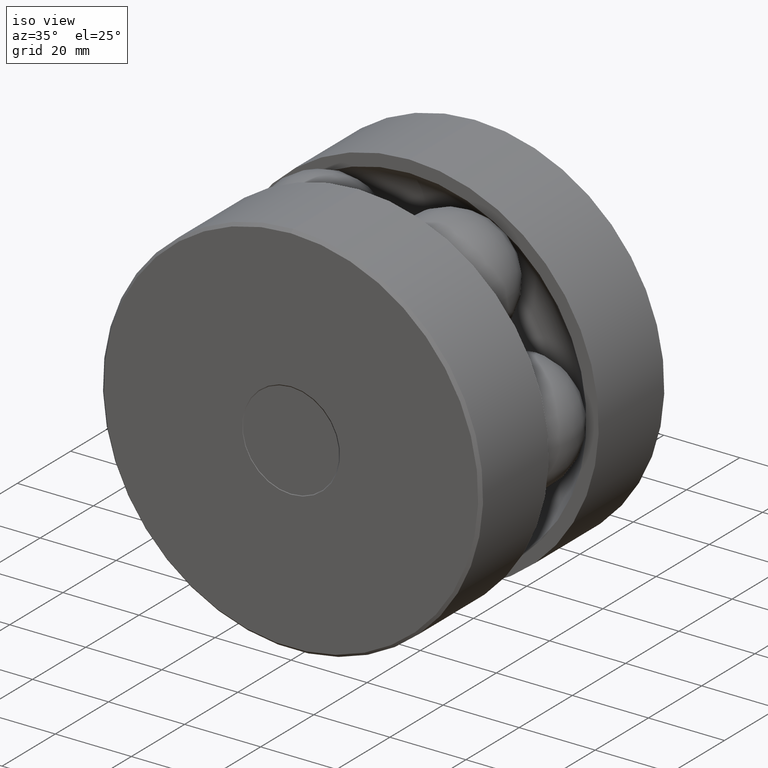
[diagram: clean part render]
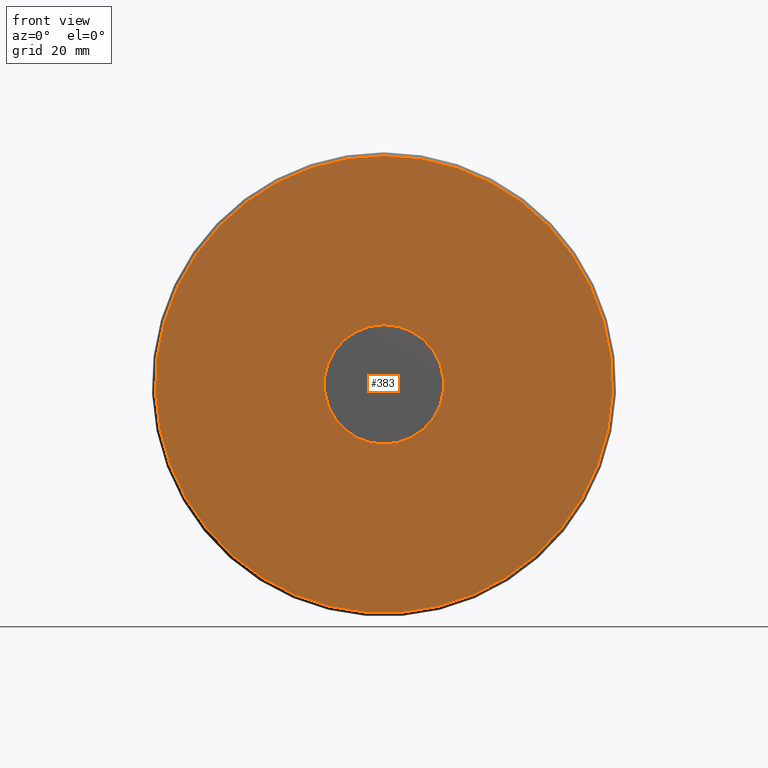
[diagram: tour spotlight — one face highlighted and labeled with its STEP entity id]
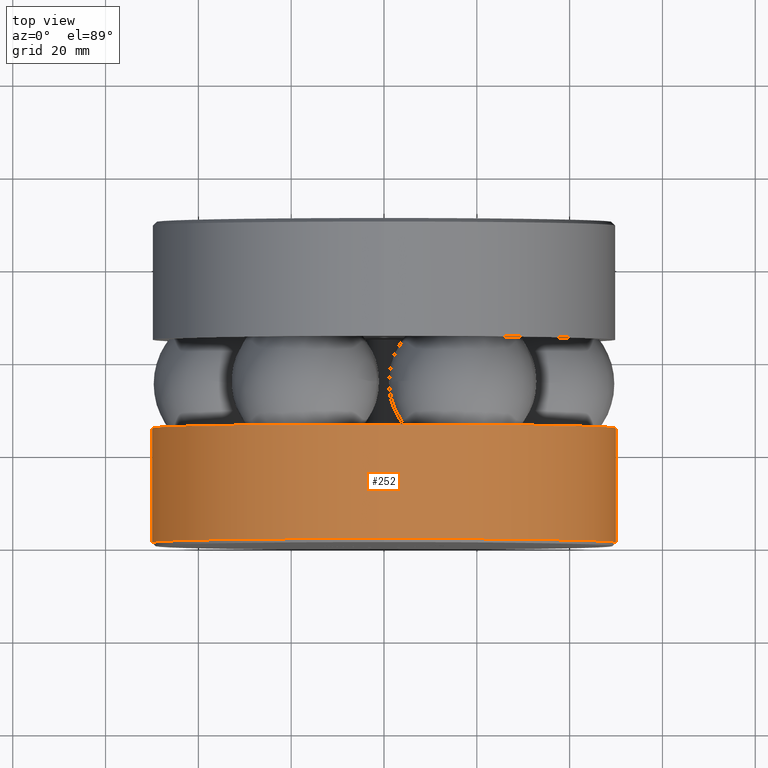
[diagram: tour spotlight — one face highlighted and labeled with its STEP entity id]
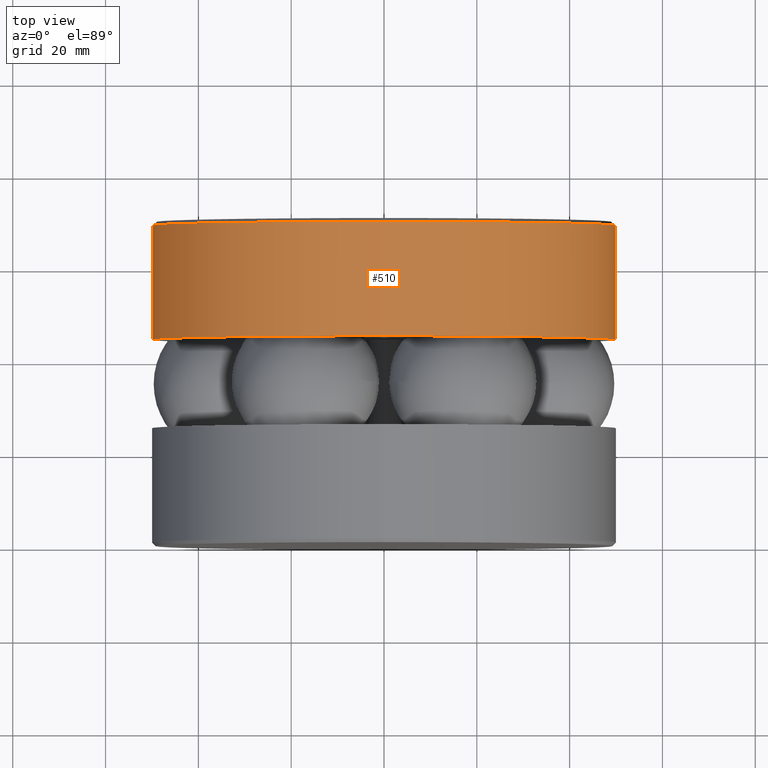
[diagram: tour spotlight — one face highlighted and labeled with its STEP entity id]
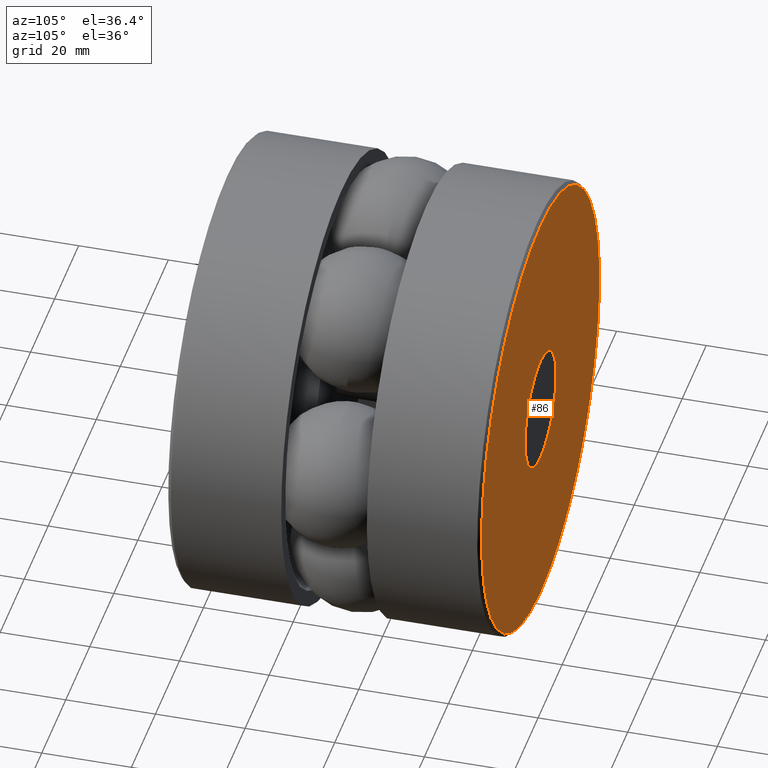
[diagram: tour spotlight — one face highlighted and labeled with its STEP entity id]
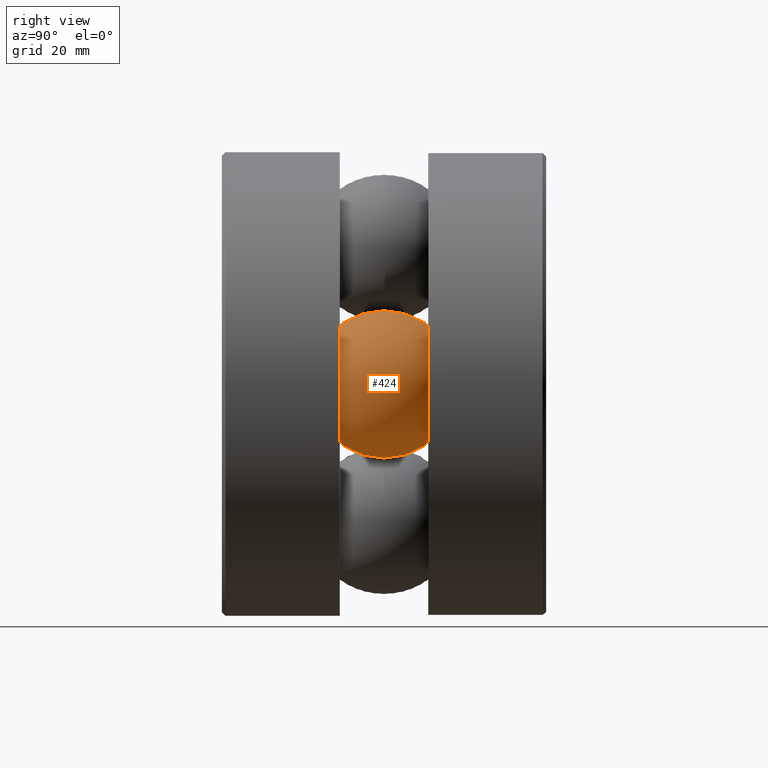
[diagram: tour spotlight — one face highlighted and labeled with its STEP entity id]
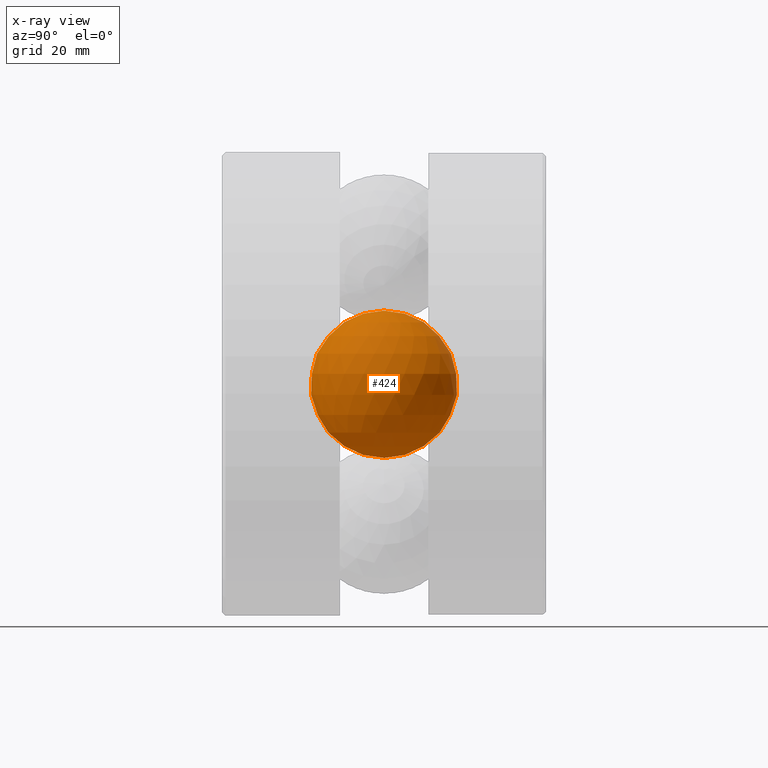
[diagram: x-ray of the same camera — body ghosted, this tour face saturated]
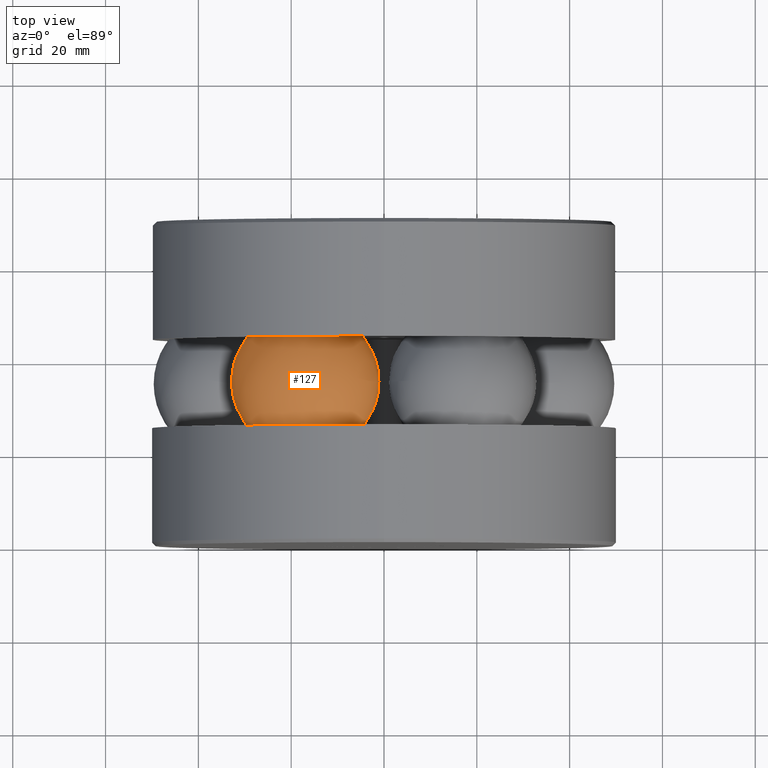
[diagram: tour spotlight — one face highlighted and labeled with its STEP entity id]
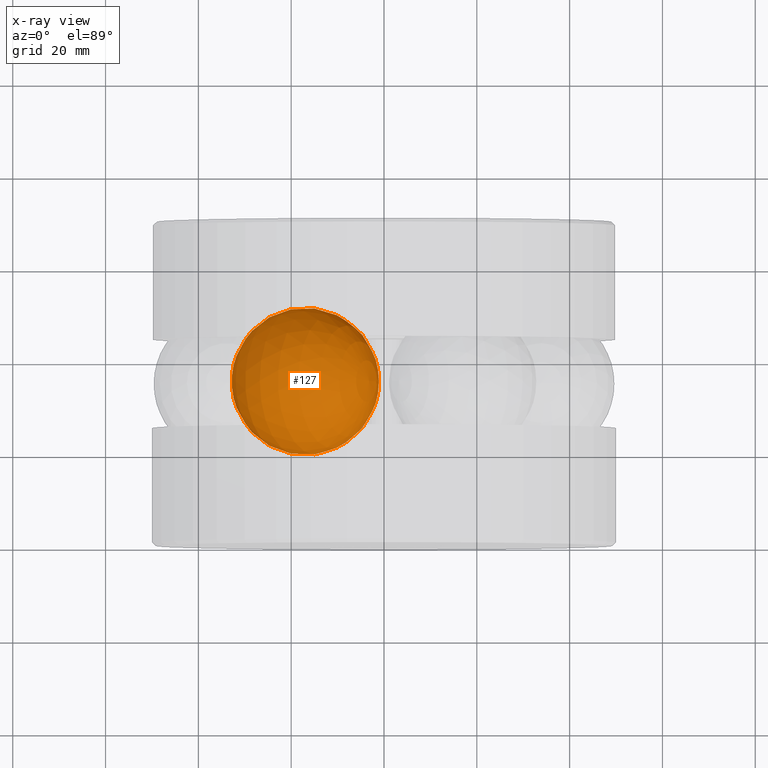
[diagram: x-ray of the same camera — body ghosted, this tour face saturated]
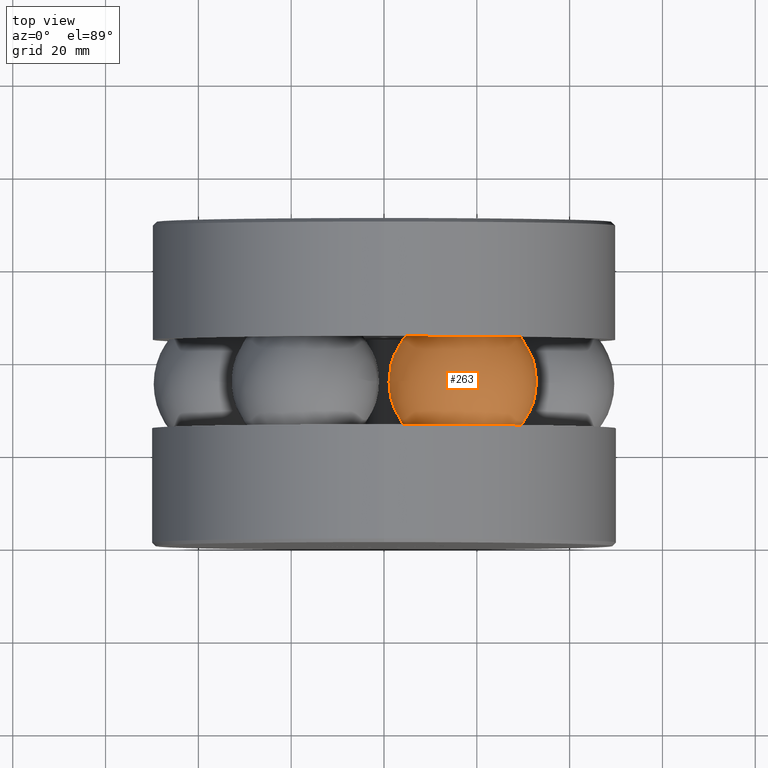
[diagram: tour spotlight — one face highlighted and labeled with its STEP entity id]
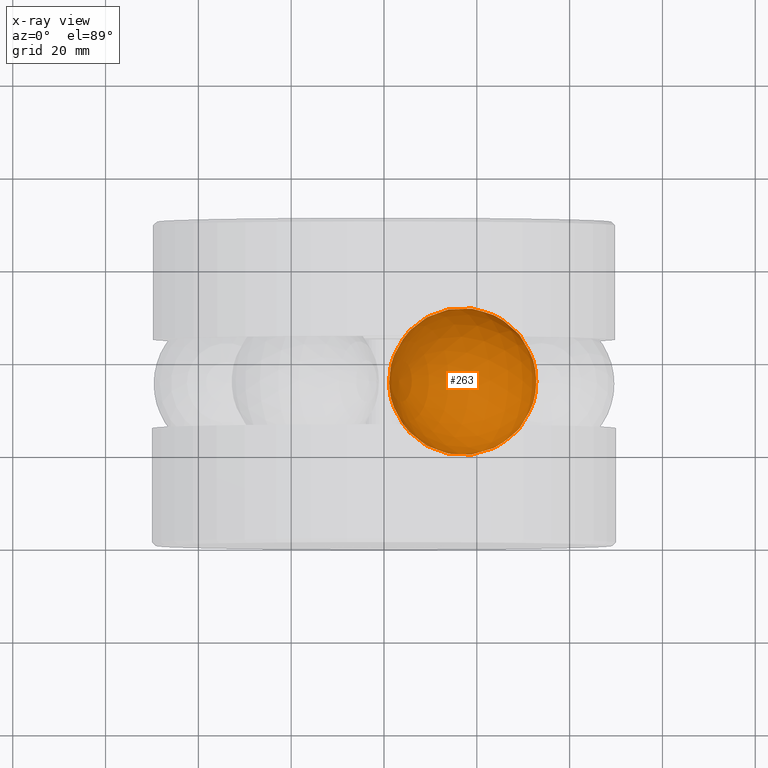
[diagram: x-ray of the same camera — body ghosted, this tour face saturated]
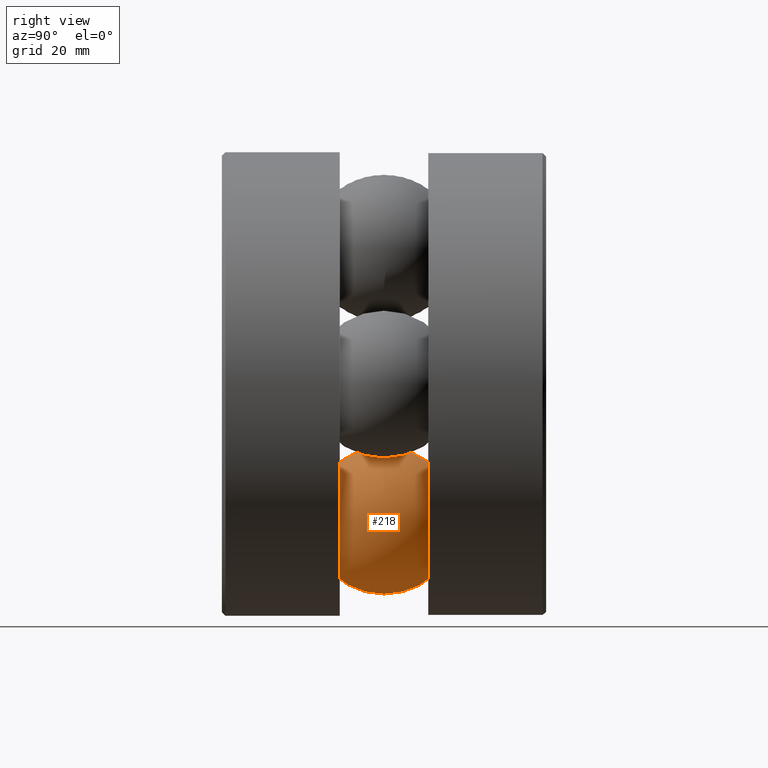
[diagram: tour spotlight — one face highlighted and labeled with its STEP entity id]
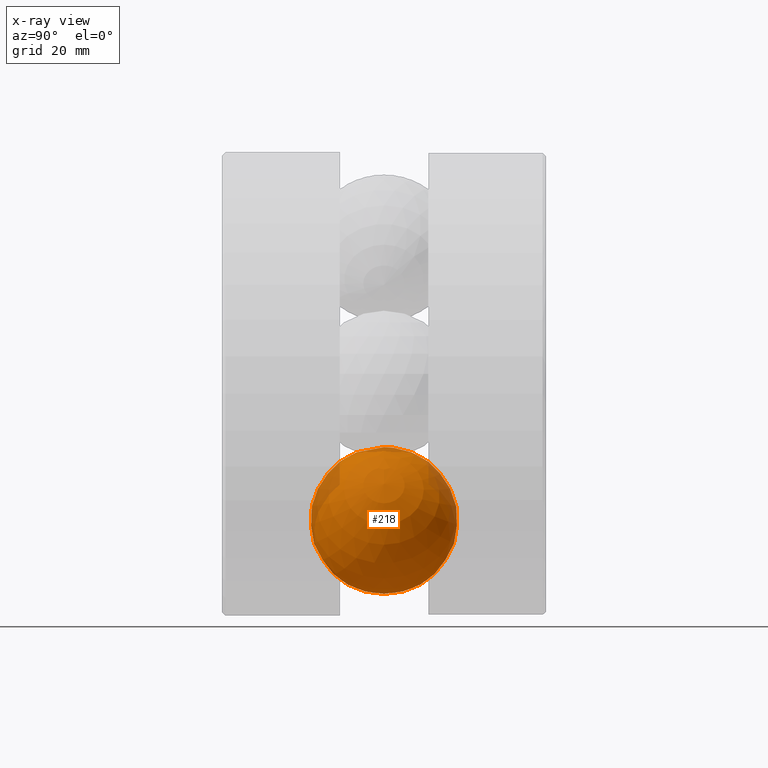
[diagram: x-ray of the same camera — body ghosted, this tour face saturated]
A machine part: a face-by-face anatomy tour. The part has 27 B-rep faces; the first image is the clean iso view, then the 8 largest visible faces are spotlighted one at a time (largest first), each with its STEP entity span.

Face 1 — front view, entity #383. In plain terms, the highlighted planar face has unit normal (0, -1, 0).
Definition (entity closure, byte-faithful):
#30 = DIRECTION ( 'NONE',  ( 0.0000000000000000000, -0.0000000000000000000, -1.000000000000000000 ) ) ;
#50 = EDGE_LOOP ( 'NONE', ( #78 ) ) ;
#78 = ORIENTED_EDGE ( 'NONE', *, *, #188, .F. ) ;
#128 = DIRECTION ( 'NONE',  ( -0.0000000000000000000, 1.000000000000000000, -0.0000000000000000000 ) ) ;
#130 = EDGE_LOOP ( 'NONE', ( #432 ) ) ;
#180 = AXIS2_PLACEMENT_3D ( 'NONE', #210, #404, #30 ) ;
#184 = CARTESIAN_POINT ( 'NONE',  ( 0.0000000000000000000, -1.772329221079896900E-016, 1.939000000000000100 ) ) ;
#188 = EDGE_CURVE ( 'NONE', #379, #379, #215, .T. ) ;
#195 = DIRECTION ( 'NONE',  ( -0.0000000000000000000, 1.000000000000000000, -0.0000000000000000000 ) ) ;
#208 = CIRCLE ( 'NONE', #408, 0.5068210678118617600 ) ;
#210 = CARTESIAN_POINT ( 'NONE',  ( -0.5068210678118617600, -9.346574812682652800E-017, 0.0000000000000000000 ) ) ;
#215 = CIRCLE ( 'NONE', #411, 1.939000000000000100 ) ;
#240 = CARTESIAN_POINT ( 'NONE',  ( 0.0000000000000000000, -1.772329221079896900E-016, 0.0000000000000000000 ) ) ;
#260 = DIRECTION ( 'NONE',  ( 0.0000000000000000000, 0.0000000000000000000, 1.000000000000000000 ) ) ;
#298 = CARTESIAN_POINT ( 'NONE',  ( 0.0000000000000000000, -9.698574145663359300E-018, 0.5068210678118617600 ) ) ;
#312 = VERTEX_POINT ( 'NONE', #298 ) ;
#324 = DIRECTION ( 'NONE',  ( 0.0000000000000000000, 0.0000000000000000000, 1.000000000000000000 ) ) ;
#379 = VERTEX_POINT ( 'NONE', #184 ) ;
#382 = CARTESIAN_POINT ( 'NONE',  ( 0.0000000000000000000, -9.698574145663359300E-018, 0.0000000000000000000 ) ) ;
#383 = ADVANCED_FACE ( 'NONE', ( #437, #415 ), #420, .T. ) ;
#404 = DIRECTION ( 'NONE',  ( 0.0000000000000000000, -1.000000000000000000, 0.0000000000000000000 ) ) ;
#408 = AXIS2_PLACEMENT_3D ( 'NONE', #382, #128, #260 ) ;
#411 = AXIS2_PLACEMENT_3D ( 'NONE', #240, #195, #324 ) ;
#415 = FACE_OUTER_BOUND ( 'NONE', #50, .T. ) ;
#420 = PLANE ( 'NONE',  #180 ) ;
#432 = ORIENTED_EDGE ( 'NONE', *, *, #536, .T. ) ;
#437 = FACE_BOUND ( 'NONE', #130, .T. ) ;
#536 = EDGE_CURVE ( 'NONE', #312, #312, #208, .T. ) ;

Face 2 — top view, entity #252. In plain terms, the highlighted cylindrical surface (bore or boss wall) has radius 50.0126 mm, axis along (-0, 1, -0).
Definition (entity closure, byte-faithful):
#19 = DIRECTION ( 'NONE',  ( 0.0000000000000000000, 0.0000000000000000000, 1.000000000000000000 ) ) ;
#31 = EDGE_CURVE ( 'NONE', #294, #294, #381, .T. ) ;
#42 = FACE_OUTER_BOUND ( 'NONE', #479, .T. ) ;
#55 = CARTESIAN_POINT ( 'NONE',  ( 0.0000000000000000000, 0.9999999999999995600, 0.0000000000000000000 ) ) ;
#61 = VERTEX_POINT ( 'NONE', #272 ) ;
#64 = AXIS2_PLACEMENT_3D ( 'NONE', #366, #541, #319 ) ;
#115 = DIRECTION ( 'NONE',  ( 0.0000000000000000000, 0.0000000000000000000, 1.000000000000000000 ) ) ;
#143 = EDGE_CURVE ( 'NONE', #61, #61, #547, .T. ) ;
#177 = CARTESIAN_POINT ( 'NONE',  ( 0.0000000000000000000, 0.9999999999999995600, 1.968999999999999900 ) ) ;
#245 = CYLINDRICAL_SURFACE ( 'NONE', #64, 1.968999999999999900 ) ;
#252 = ADVANCED_FACE ( 'NONE', ( #378, #42 ), #245, .T. ) ;
#253 = ORIENTED_EDGE ( 'NONE', *, *, #143, .T. ) ;
#272 = CARTESIAN_POINT ( 'NONE',  ( 0.0000000000000000000, 0.03000000000000008900, 1.968999999999999900 ) ) ;
#294 = VERTEX_POINT ( 'NONE', #177 ) ;
#297 = AXIS2_PLACEMENT_3D ( 'NONE', #308, #370, #115 ) ;
#308 = CARTESIAN_POINT ( 'NONE',  ( 0.0000000000000000000, 0.03000000000000008900, 0.0000000000000000000 ) ) ;
#318 = EDGE_LOOP ( 'NONE', ( #253 ) ) ;
#319 = DIRECTION ( 'NONE',  ( 0.0000000000000000000, 0.0000000000000000000, 1.000000000000000000 ) ) ;
#366 = CARTESIAN_POINT ( 'NONE',  ( 0.0000000000000000000, 0.0000000000000000000, 0.0000000000000000000 ) ) ;
#370 = DIRECTION ( 'NONE',  ( -0.0000000000000000000, 1.000000000000000000, -0.0000000000000000000 ) ) ;
#378 = FACE_OUTER_BOUND ( 'NONE', #318, .T. ) ;
#381 = CIRCLE ( 'NONE', #489, 1.968999999999999900 ) ;
#479 = EDGE_LOOP ( 'NONE', ( #501 ) ) ;
#489 = AXIS2_PLACEMENT_3D ( 'NONE', #55, #517, #19 ) ;
#501 = ORIENTED_EDGE ( 'NONE', *, *, #31, .F. ) ;
#517 = DIRECTION ( 'NONE',  ( -0.0000000000000000000, 1.000000000000000000, -0.0000000000000000000 ) ) ;
#541 = DIRECTION ( 'NONE',  ( -0.0000000000000000000, 1.000000000000000000, -0.0000000000000000000 ) ) ;
#547 = CIRCLE ( 'NONE', #297, 1.968999999999999900 ) ;

Face 3 — top view, entity #510. In plain terms, the highlighted cylindrical surface (bore or boss wall) has radius 49.8348 mm, axis along (-0, 1, -0).
Definition (entity closure, byte-faithful):
#2 = CARTESIAN_POINT ( 'NONE',  ( 0.0000000000000000000, 0.0000000000000000000, 0.0000000000000000000 ) ) ;
#22 = CIRCLE ( 'NONE', #81, 1.962000000000000000 ) ;
#51 = EDGE_LOOP ( 'NONE', ( #90 ) ) ;
#54 = EDGE_LOOP ( 'NONE', ( #186 ) ) ;
#76 = AXIS2_PLACEMENT_3D ( 'NONE', #261, #213, #336 ) ;
#79 = EDGE_CURVE ( 'NONE', #506, #506, #259, .T. ) ;
#81 = AXIS2_PLACEMENT_3D ( 'NONE', #345, #96, #426 ) ;
#88 = DIRECTION ( 'NONE',  ( 0.0000000000000000000, 0.0000000000000000000, 1.000000000000000000 ) ) ;
#90 = ORIENTED_EDGE ( 'NONE', *, *, #288, .F. ) ;
#95 = FACE_OUTER_BOUND ( 'NONE', #51, .T. ) ;
#96 = DIRECTION ( 'NONE',  ( -0.0000000000000000000, 1.000000000000000000, -0.0000000000000000000 ) ) ;
#186 = ORIENTED_EDGE ( 'NONE', *, *, #79, .T. ) ;
#213 = DIRECTION ( 'NONE',  ( -0.0000000000000000000, 1.000000000000000000, -0.0000000000000000000 ) ) ;
#259 = CIRCLE ( 'NONE', #76, 1.962000000000000000 ) ;
#261 = CARTESIAN_POINT ( 'NONE',  ( 0.0000000000000000000, 1.749999999999999600, 0.0000000000000000000 ) ) ;
#288 = EDGE_CURVE ( 'NONE', #482, #482, #22, .T. ) ;
#336 = DIRECTION ( 'NONE',  ( 0.0000000000000000000, 0.0000000000000000000, 1.000000000000000000 ) ) ;
#342 = DIRECTION ( 'NONE',  ( -0.0000000000000000000, 1.000000000000000000, -0.0000000000000000000 ) ) ;
#345 = CARTESIAN_POINT ( 'NONE',  ( 0.0000000000000000000, 2.719999999999999300, 0.0000000000000000000 ) ) ;
#388 = CARTESIAN_POINT ( 'NONE',  ( 0.0000000000000000000, 1.749999999999999600, 1.962000000000000000 ) ) ;
#419 = CYLINDRICAL_SURFACE ( 'NONE', #460, 1.962000000000000000 ) ;
#426 = DIRECTION ( 'NONE',  ( 0.0000000000000000000, 0.0000000000000000000, 1.000000000000000000 ) ) ;
#454 = CARTESIAN_POINT ( 'NONE',  ( 0.0000000000000000000, 2.719999999999999300, 1.962000000000000000 ) ) ;
#460 = AXIS2_PLACEMENT_3D ( 'NONE', #2, #342, #88 ) ;
#482 = VERTEX_POINT ( 'NONE', #454 ) ;
#506 = VERTEX_POINT ( 'NONE', #388 ) ;
#510 = ADVANCED_FACE ( 'NONE', ( #550, #95 ), #419, .T. ) ;
#550 = FACE_OUTER_BOUND ( 'NONE', #54, .T. ) ;

Face 4 — auxiliary view, entity #86. In plain terms, the highlighted planar face has unit normal (-0, 1, 0).
Definition (entity closure, byte-faithful):
#1 = EDGE_CURVE ( 'NONE', #110, #110, #397, .T. ) ;
#23 = FACE_BOUND ( 'NONE', #250, .T. ) ;
#41 = DIRECTION ( 'NONE',  ( -0.0000000000000000000, 1.000000000000000000, -0.0000000000000000000 ) ) ;
#60 = CARTESIAN_POINT ( 'NONE',  ( 0.0000000000000000000, 2.750000000000000000, 0.0000000000000000000 ) ) ;
#66 = AXIS2_PLACEMENT_3D ( 'NONE', #168, #41, #507 ) ;
#83 = CIRCLE ( 'NONE', #66, 1.932000000000000400 ) ;
#86 = ADVANCED_FACE ( 'NONE', ( #357, #23 ), #425, .T. ) ;
#97 = DIRECTION ( 'NONE',  ( -0.0000000000000000000, 1.000000000000000000, -0.0000000000000000000 ) ) ;
#110 = VERTEX_POINT ( 'NONE', #412 ) ;
#117 = ORIENTED_EDGE ( 'NONE', *, *, #1, .F. ) ;
#160 = CARTESIAN_POINT ( 'NONE',  ( 0.0000000000000000000, 2.750000000000000000, 1.932000000000000400 ) ) ;
#162 = AXIS2_PLACEMENT_3D ( 'NONE', #468, #216, #174 ) ;
#168 = CARTESIAN_POINT ( 'NONE',  ( 0.0000000000000000000, 2.750000000000000000, 0.0000000000000000000 ) ) ;
#174 = DIRECTION ( 'NONE',  ( 0.0000000000000000000, 0.0000000000000000000, 1.000000000000000000 ) ) ;
#216 = DIRECTION ( 'NONE',  ( -0.0000000000000000000, 1.000000000000000000, 0.0000000000000000000 ) ) ;
#250 = EDGE_LOOP ( 'NONE', ( #117 ) ) ;
#256 = AXIS2_PLACEMENT_3D ( 'NONE', #60, #97, #524 ) ;
#356 = EDGE_CURVE ( 'NONE', #368, #368, #83, .T. ) ;
#357 = FACE_OUTER_BOUND ( 'NONE', #527, .T. ) ;
#368 = VERTEX_POINT ( 'NONE', #160 ) ;
#397 = CIRCLE ( 'NONE', #256, 0.5068210678118622000 ) ;
#412 = CARTESIAN_POINT ( 'NONE',  ( 0.0000000000000000000, 2.750000000000000000, 0.5068210678118622000 ) ) ;
#425 = PLANE ( 'NONE',  #162 ) ;
#435 = ORIENTED_EDGE ( 'NONE', *, *, #356, .T. ) ;
#468 = CARTESIAN_POINT ( 'NONE',  ( -0.5068210678118622000, 2.750000000000000000, 0.0000000000000000000 ) ) ;
#507 = DIRECTION ( 'NONE',  ( 0.0000000000000000000, 0.0000000000000000000, 1.000000000000000000 ) ) ;
#524 = DIRECTION ( 'NONE',  ( 0.0000000000000000000, 0.0000000000000000000, 1.000000000000000000 ) ) ;
#527 = EDGE_LOOP ( 'NONE', ( #435 ) ) ;

Face 5 — right view, entity #424. An x-ray twin of the same camera follows (body ghosted, this face saturated) — the face is partly hidden behind the body. In plain terms, the highlighted spherical surface has radius 15.875 mm.
Definition (entity closure, byte-faithful):
#100 = DIRECTION ( 'NONE',  ( -1.000000000000000000, 0.0000000000000000000, 6.982962677686265900E-015 ) ) ;
#187 = CARTESIAN_POINT ( 'NONE',  ( 1.335000000000000200, 1.374999999999999300, -9.322255174711166700E-015 ) ) ;
#269 = AXIS2_PLACEMENT_3D ( 'NONE', #187, #483, #100 ) ;
#299 = SPHERICAL_SURFACE ( 'NONE', #269, 0.6250000000000000000 ) ;
#424 = ADVANCED_FACE ( 'NONE', ( ), #299, .T. ) ;
#483 = DIRECTION ( 'NONE',  ( 6.982962677686265900E-015, -0.0000000000000000000, 1.000000000000000000 ) ) ;

Face 6 — top view, entity #127. An x-ray twin of the same camera follows (body ghosted, this face saturated) — the face is partly hidden behind the body. In plain terms, the highlighted spherical surface has radius 15.875 mm.
Definition (entity closure, byte-faithful):
#6 = SPHERICAL_SURFACE ( 'NONE', #282, 0.6250000000000000000 ) ;
#7 = DIRECTION ( 'NONE',  ( 0.4999999999999979500, 0.0000000000000000000, -0.8660254037844397100 ) ) ;
#127 = ADVANCED_FACE ( 'NONE', ( ), #6, .T. ) ;
#282 = AXIS2_PLACEMENT_3D ( 'NONE', #484, #511, #7 ) ;
#484 = CARTESIAN_POINT ( 'NONE',  ( -0.6674999999999973200, 1.374999999999999300, 1.156143914052227200 ) ) ;
#511 = DIRECTION ( 'NONE',  ( -0.8660254037844397100, 0.0000000000000000000, -0.4999999999999979500 ) ) ;

Face 7 — top view, entity #263. An x-ray twin of the same camera follows (body ghosted, this face saturated) — the face is partly hidden behind the body. In plain terms, the highlighted spherical surface has radius 15.875 mm.
Definition (entity closure, byte-faithful):
#3 = AXIS2_PLACEMENT_3D ( 'NONE', #221, #475, #307 ) ;
#221 = CARTESIAN_POINT ( 'NONE',  ( 0.6675000000000055300, 1.374999999999999300, 1.156143914052222700 ) ) ;
#263 = ADVANCED_FACE ( 'NONE', ( ), #463, .T. ) ;
#307 = DIRECTION ( 'NONE',  ( -0.5000000000000040000, 0.0000000000000000000, -0.8660254037844362700 ) ) ;
#463 = SPHERICAL_SURFACE ( 'NONE', #3, 0.6250000000000000000 ) ;
#475 = DIRECTION ( 'NONE',  ( -0.8660254037844362700, 0.0000000000000000000, 0.5000000000000040000 ) ) ;

Face 8 — right view, entity #218. An x-ray twin of the same camera follows (body ghosted, this face saturated) — the face is partly hidden behind the body. In plain terms, the highlighted spherical surface has radius 15.875 mm.
Definition (entity closure, byte-faithful):
#154 = CARTESIAN_POINT ( 'NONE',  ( 0.6674999999999892100, 1.374999999999999300, -1.156143914052231800 ) ) ;
#218 = ADVANCED_FACE ( 'NONE', ( ), #480, .T. ) ;
#407 = DIRECTION ( 'NONE',  ( -0.4999999999999919000, 0.0000000000000000000, 0.8660254037844432600 ) ) ;
#447 = DIRECTION ( 'NONE',  ( 0.8660254037844432600, -0.0000000000000000000, 0.4999999999999919000 ) ) ;
#480 = SPHERICAL_SURFACE ( 'NONE', #530, 0.6250000000000000000 ) ;
#530 = AXIS2_PLACEMENT_3D ( 'NONE', #154, #447, #407 ) ;